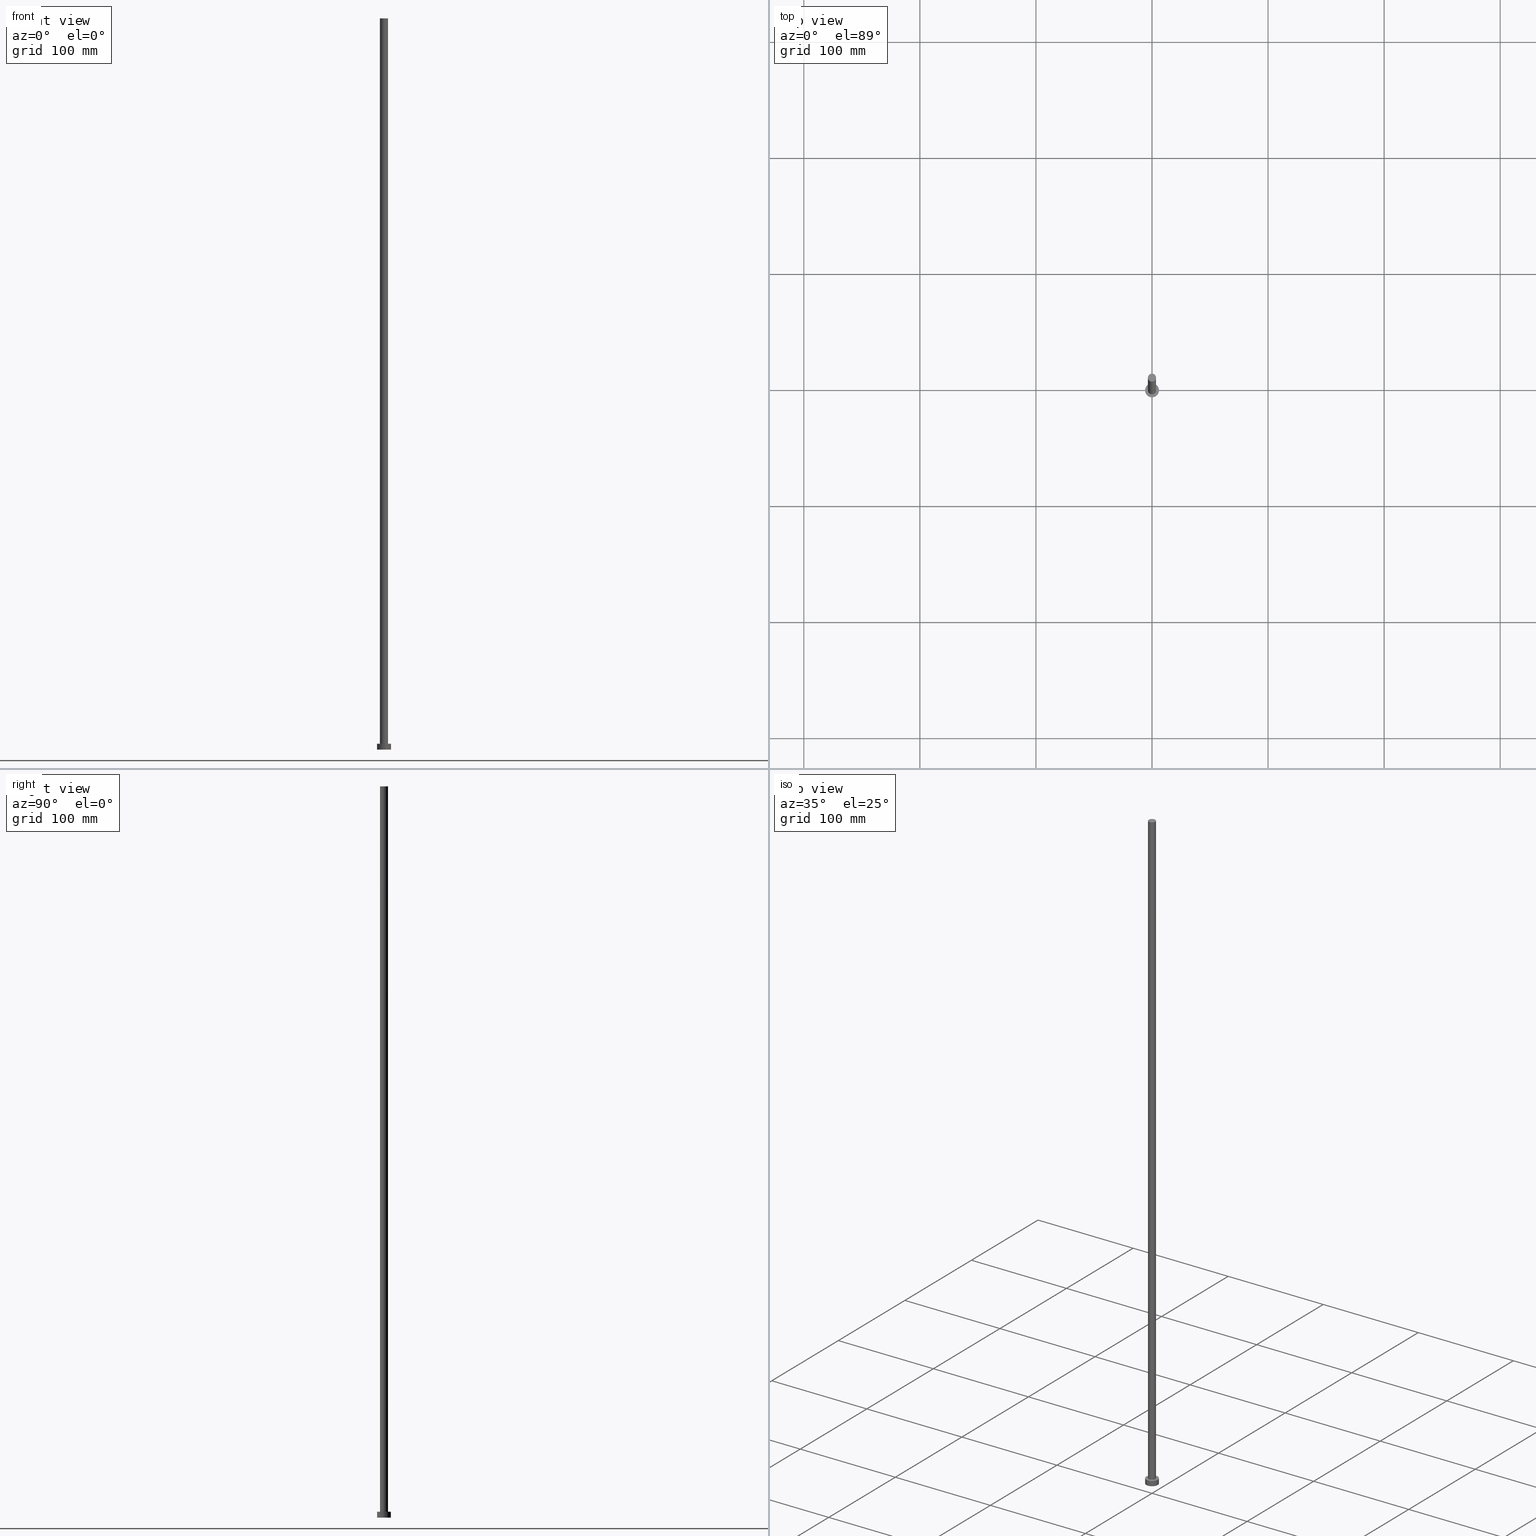
[diagram: canonical four-view strip — front | top / right | iso, engineering-drawing reading convention]
A machine part, canonical four-view strip (front | top / right | iso — engineering-drawing reading convention). The complete STEP part file that produces these views, byte-faithful:
ISO-10303-21;
HEADER;
FILE_DESCRIPTION (( 'STEP AP203' ),
    '1' );
FILE_NAME ('64f1.STEP',
    '2023-02-12T11:58:34',
    ( '' ),
    ( '' ),
    'SwSTEP 2.0',
    'SolidWorks 2019',
    '' );
FILE_SCHEMA (( 'CONFIG_CONTROL_DESIGN' ));
ENDSEC;

DATA;
#1 = DATE_AND_TIME ( #253, #81 ) ;
#2 = LINE ( 'NONE', #80, #142 ) ;
#3 = DIRECTION ( 'NONE',  ( 0.000000000000000000, 0.000000000000000000, 1.000000000000000000 ) ) ;
#4 = DIRECTION ( 'NONE',  ( 1.000000000000000000, 0.000000000000000000, -0.000000000000000000 ) ) ;
#5 = AXIS2_PLACEMENT_3D ( 'NONE', #164, #64, #147 ) ;
#6 = CC_DESIGN_PERSON_AND_ORGANIZATION_ASSIGNMENT ( #40, #194, ( #237 ) ) ;
#7 = LINE ( 'NONE', #28, #126 ) ;
#8 = DESIGN_CONTEXT ( 'detailed design', #234, 'design' ) ;
#9 = APPROVAL_ROLE ( '' ) ;
#10 = AXIS2_PLACEMENT_3D ( 'NONE', #188, #246, #224 ) ;
#11 = DIRECTION ( 'NONE',  ( 1.000000000000000000, 0.000000000000000000, 0.000000000000000000 ) ) ;
#12 = APPROVAL_DATE_TIME ( #56, #181 ) ;
#13 = DIRECTION ( 'NONE',  ( 0.000000000000000000, 0.000000000000000000, 1.000000000000000000 ) ) ;
#14 = CALENDAR_DATE ( 2023, 12, 2 ) ;
#15 = ORIENTED_EDGE ( 'NONE', *, *, #209, .T. ) ;
#16 = AXIS2_PLACEMENT_3D ( 'NONE', #171, #73, #151 ) ;
#17 = AXIS2_PLACEMENT_3D ( 'NONE', #180, #145, #179 ) ;
#18 = APPROVAL_DATE_TIME ( #255, #107 ) ;
#19 = ORIENTED_EDGE ( 'NONE', *, *, #211, .T. ) ;
#20 = CARTESIAN_POINT ( 'NONE',  ( 0.000000000000000000, 0.000000000000000000, 5.000000000000000000 ) ) ;
#21 = COORDINATED_UNIVERSAL_TIME_OFFSET ( 1, 0, .AHEAD. ) ;
#22 = CARTESIAN_POINT ( 'NONE',  ( -6.000000000000000888, 0.000000000000000000, 0.000000000000000000 ) ) ;
#23 = PERSON_AND_ORGANIZATION_ROLE ( 'design_supplier' ) ;
#24 = CARTESIAN_POINT ( 'NONE',  ( 3.500000000000000000, 4.286263797015736595E-16, 630.0000000000000000 ) ) ;
#25 = CIRCLE ( 'NONE', #215, 3.500000000000000000 ) ;
#26 = DIRECTION ( 'NONE',  ( -1.000000000000000000, 0.000000000000000000, 0.000000000000000000 ) ) ;
#27 = SHAPE_DEFINITION_REPRESENTATION ( #61, #190 ) ;
#28 = CARTESIAN_POINT ( 'NONE',  ( -3.500000000000000000, 0.000000000000000000, 630.0000000000000000 ) ) ;
#29 = CARTESIAN_POINT ( 'NONE',  ( 3.500000000000000000, 4.286263797015736595E-16, 630.0000000000000000 ) ) ;
#30 = LOCAL_TIME ( 12, 58, 34.00000000000000000, #137 ) ;
#31 = APPLICATION_PROTOCOL_DEFINITION ( 'international standard', 'config_control_design', 1994, #234 ) ;
#32 =( NAMED_UNIT ( * ) PLANE_ANGLE_UNIT ( ) SI_UNIT ( $, .RADIAN. ) );
#33 = PERSON_AND_ORGANIZATION ( #86, #49 ) ;
#34 = EDGE_CURVE ( 'NONE', #76, #150, #25, .T. ) ;
#35 =( GEOMETRIC_REPRESENTATION_CONTEXT ( 3 ) GLOBAL_UNCERTAINTY_ASSIGNED_CONTEXT ( ( #173 ) ) GLOBAL_UNIT_ASSIGNED_CONTEXT ( ( #53, #32, #228 ) ) REPRESENTATION_CONTEXT ( 'NONE', 'WORKASPACE' ) );
#36 = ORIENTED_EDGE ( 'NONE', *, *, #128, .T. ) ;
#37 = ORIENTED_EDGE ( 'NONE', *, *, #41, .F. ) ;
#38 = ORIENTED_EDGE ( 'NONE', *, *, #67, .F. ) ;
#39 = APPROVAL_STATUS ( 'not_yet_approved' ) ;
#40 = PERSON_AND_ORGANIZATION ( #86, #49 ) ;
#41 = EDGE_CURVE ( 'NONE', #58, #210, #47, .T. ) ;
#42 = DIRECTION ( 'NONE',  ( 1.000000000000000000, 0.000000000000000000, 0.000000000000000000 ) ) ;
#43 = AXIS2_PLACEMENT_3D ( 'NONE', #48, #127, #83 ) ;
#44 = DIRECTION ( 'NONE',  ( 0.000000000000000000, 0.000000000000000000, 1.000000000000000000 ) ) ;
#45 = CARTESIAN_POINT ( 'NONE',  ( 6.000000000000000888, 7.347880794884120722E-16, 5.000000000000000000 ) ) ;
#46 = LINE ( 'NONE', #24, #244 ) ;
#47 = CIRCLE ( 'NONE', #101, 6.000000000000000888 ) ;
#48 = CARTESIAN_POINT ( 'NONE',  ( 0.000000000000000000, 0.000000000000000000, 630.0000000000000000 ) ) ;
#49 = ORGANIZATION ( 'NEUR�EN�', 'NEUR�EN�', '' ) ;
#50 = CC_DESIGN_DATE_AND_TIME_ASSIGNMENT ( #1, #159, ( #54 ) ) ;
#51 = CC_DESIGN_APPROVAL ( #107, ( #237 ) ) ;
#52 = DATE_TIME_ROLE ( 'creation_date' ) ;
#53 =( LENGTH_UNIT ( ) NAMED_UNIT ( * ) SI_UNIT ( .MILLI., .METRE. ) );
#54 = SECURITY_CLASSIFICATION ( '', '', #118 ) ;
#55 = EDGE_CURVE ( 'NONE', #227, #150, #46, .T. ) ;
#56 = DATE_AND_TIME ( #185, #226 ) ;
#57 = ORIENTED_EDGE ( 'NONE', *, *, #203, .T. ) ;
#58 = VERTEX_POINT ( 'NONE', #45 ) ;
#59 = APPROVAL_PERSON_ORGANIZATION ( #187, #181, #9 ) ;
#60 = ADVANCED_FACE ( 'NONE', ( #146 ), #104, .T. ) ;
#61 = PRODUCT_DEFINITION_SHAPE ( 'NONE', 'NONE',  #225 ) ;
#62 = CARTESIAN_POINT ( 'NONE',  ( 0.000000000000000000, 0.000000000000000000, 5.000000000000000000 ) ) ;
#63 = DIRECTION ( 'NONE',  ( -0.000000000000000000, -0.000000000000000000, -1.000000000000000000 ) ) ;
#64 = DIRECTION ( 'NONE',  ( 0.000000000000000000, 0.000000000000000000, 1.000000000000000000 ) ) ;
#65 = DIRECTION ( 'NONE',  ( -0.000000000000000000, -0.000000000000000000, -1.000000000000000000 ) ) ;
#66 = CLOSED_SHELL ( 'NONE', ( #60, #240, #136, #223, #163, #134, #167 ) ) ;
#67 = EDGE_CURVE ( 'NONE', #174, #98, #241, .T. ) ;
#68 = FACE_OUTER_BOUND ( 'NONE', #157, .T. ) ;
#69 = FACE_OUTER_BOUND ( 'NONE', #195, .T. ) ;
#70 = CC_DESIGN_DATE_AND_TIME_ASSIGNMENT ( #247, #52, ( #225 ) ) ;
#71 = DIRECTION ( 'NONE',  ( 0.000000000000000000, 0.000000000000000000, 1.000000000000000000 ) ) ;
#72 = ORIENTED_EDGE ( 'NONE', *, *, #209, .F. ) ;
#73 = DIRECTION ( 'NONE',  ( -0.000000000000000000, -0.000000000000000000, -1.000000000000000000 ) ) ;
#74 = APPROVAL ( #39, 'NEUR�EN�' ) ;
#75 = ORIENTED_EDGE ( 'NONE', *, *, #55, .T. ) ;
#76 = VERTEX_POINT ( 'NONE', #120 ) ;
#77 = PERSON_AND_ORGANIZATION ( #86, #49 ) ;
#78 = COORDINATED_UNIVERSAL_TIME_OFFSET ( 1, 0, .AHEAD. ) ;
#79 = AXIS2_PLACEMENT_3D ( 'NONE', #125, #178, #121 ) ;
#80 = CARTESIAN_POINT ( 'NONE',  ( -6.000000000000000888, 0.000000000000000000, 5.000000000000000000 ) ) ;
#81 = LOCAL_TIME ( 12, 58, 34.00000000000000000, #21 ) ;
#82 = CARTESIAN_POINT ( 'NONE',  ( 6.000000000000000888, 7.347880794884120722E-16, 0.000000000000000000 ) ) ;
#83 = DIRECTION ( 'NONE',  ( 1.000000000000000000, 0.000000000000000000, 0.000000000000000000 ) ) ;
#84 = APPROVAL_DATE_TIME ( #230, #74 ) ;
#85 = FACE_OUTER_BOUND ( 'NONE', #140, .T. ) ;
#86 = PERSON ( 'NEUR�EN�', 'NEUR�EN�', 'NEUR�EN�', ('NEUR�EN�'), ('NEUR�EN�'), ('NEUR�EN�') ) ;
#87 = CARTESIAN_POINT ( 'NONE',  ( 6.000000000000000888, 7.347880794884120722E-16, 5.000000000000000000 ) ) ;
#88 = PERSON_AND_ORGANIZATION ( #86, #49 ) ;
#89 = EDGE_CURVE ( 'NONE', #210, #58, #200, .T. ) ;
#90 = CALENDAR_DATE ( 2023, 12, 2 ) ;
#91 = APPROVAL_PERSON_ORGANIZATION ( #33, #107, #113 ) ;
#92 = DIRECTION ( 'NONE',  ( 1.000000000000000000, 0.000000000000000000, 0.000000000000000000 ) ) ;
#93 = FACE_BOUND ( 'NONE', #100, .T. ) ;
#94 = CC_DESIGN_PERSON_AND_ORGANIZATION_ASSIGNMENT ( #102, #141, ( #54 ) ) ;
#95 = ORIENTED_EDGE ( 'NONE', *, *, #55, .F. ) ;
#96 = ORIENTED_EDGE ( 'NONE', *, *, #220, .F. ) ;
#97 = APPROVAL_PERSON_ORGANIZATION ( #238, #74, #177 ) ;
#98 = VERTEX_POINT ( 'NONE', #22 ) ;
#99 = EDGE_CURVE ( 'NONE', #210, #98, #2, .T. ) ;
#100 = EDGE_LOOP ( 'NONE', ( #193, #96 ) ) ;
#101 = AXIS2_PLACEMENT_3D ( 'NONE', #62, #217, #216 ) ;
#102 = PERSON_AND_ORGANIZATION ( #86, #49 ) ;
#103 = CARTESIAN_POINT ( 'NONE',  ( 0.000000000000000000, 0.000000000000000000, 5.000000000000000000 ) ) ;
#104 = CYLINDRICAL_SURFACE ( 'NONE', #79, 3.500000000000000000 ) ;
#105 = PLANE ( 'NONE',  #17 ) ;
#106 = PLANE ( 'NONE',  #162 ) ;
#107 = APPROVAL ( #132, 'NEUR�EN�' ) ;
#108 = FACE_OUTER_BOUND ( 'NONE', #138, .T. ) ;
#109 = AXIS2_PLACEMENT_3D ( 'NONE', #197, #3, #160 ) ;
#110 = APPLICATION_PROTOCOL_DEFINITION ( 'international standard', 'config_control_design', 1994, #175 ) ;
#111 = VECTOR ( 'NONE', #248, 1000.000000000000000 ) ;
#112 = COORDINATED_UNIVERSAL_TIME_OFFSET ( 1, 0, .AHEAD. ) ;
#113 = APPROVAL_ROLE ( '' ) ;
#114 = PERSON_AND_ORGANIZATION_ROLE ( 'design_owner' ) ;
#115 = ORIENTED_EDGE ( 'NONE', *, *, #143, .T. ) ;
#116 = LOCAL_TIME ( 12, 58, 34.00000000000000000, #78 ) ;
#117 = CIRCLE ( 'NONE', #5, 3.500000000000000000 ) ;
#118 = SECURITY_CLASSIFICATION_LEVEL ( 'unclassified' ) ;
#119 = EDGE_LOOP ( 'NONE', ( #214, #135 ) ) ;
#120 = CARTESIAN_POINT ( 'NONE',  ( -3.500000000000000000, 0.000000000000000000, 5.000000000000000000 ) ) ;
#121 = DIRECTION ( 'NONE',  ( -1.000000000000000000, 0.000000000000000000, 0.000000000000000000 ) ) ;
#122 = LOCAL_TIME ( 12, 58, 34.00000000000000000, #170 ) ;
#123 = DIRECTION ( 'NONE',  ( 1.000000000000000000, 0.000000000000000000, 0.000000000000000000 ) ) ;
#124 = CC_DESIGN_PERSON_AND_ORGANIZATION_ASSIGNMENT ( #207, #114, ( #202 ) ) ;
#125 = CARTESIAN_POINT ( 'NONE',  ( 0.000000000000000000, 0.000000000000000000, 630.0000000000000000 ) ) ;
#126 = VECTOR ( 'NONE', #63, 1000.000000000000000 ) ;
#127 = DIRECTION ( 'NONE',  ( 0.000000000000000000, 0.000000000000000000, 1.000000000000000000 ) ) ;
#128 = EDGE_CURVE ( 'NONE', #155, #76, #7, .T. ) ;
#129 = DIRECTION ( 'NONE',  ( 1.000000000000000000, 0.000000000000000000, 0.000000000000000000 ) ) ;
#130 = AXIS2_PLACEMENT_3D ( 'NONE', #103, #65, #26 ) ;
#131 = CARTESIAN_POINT ( 'NONE',  ( 0.000000000000000000, 0.000000000000000000, 5.000000000000000000 ) ) ;
#132 = APPROVAL_STATUS ( 'not_yet_approved' ) ;
#133 = CYLINDRICAL_SURFACE ( 'NONE', #16, 6.000000000000000888 ) ;
#134 = ADVANCED_FACE ( 'NONE', ( #85 ), #166, .T. ) ;
#135 = ORIENTED_EDGE ( 'NONE', *, *, #41, .T. ) ;
#136 = ADVANCED_FACE ( 'NONE', ( #68 ), #201, .T. ) ;
#137 = COORDINATED_UNIVERSAL_TIME_OFFSET ( 1, 0, .AHEAD. ) ;
#138 = EDGE_LOOP ( 'NONE', ( #191, #38 ) ) ;
#139 = CARTESIAN_POINT ( 'NONE',  ( 0.000000000000000000, 0.000000000000000000, 5.000000000000000000 ) ) ;
#140 = EDGE_LOOP ( 'NONE', ( #95, #221, #36, #189 ) ) ;
#141 = PERSON_AND_ORGANIZATION_ROLE ( 'classification_officer' ) ;
#142 = VECTOR ( 'NONE', #199, 1000.000000000000000 ) ;
#143 = EDGE_CURVE ( 'NONE', #98, #174, #204, .T. ) ;
#144 = CIRCLE ( 'NONE', #154, 3.500000000000000000 ) ;
#145 = DIRECTION ( 'NONE',  ( 0.000000000000000000, 0.000000000000000000, 1.000000000000000000 ) ) ;
#146 = FACE_OUTER_BOUND ( 'NONE', #254, .T. ) ;
#147 = DIRECTION ( 'NONE',  ( 1.000000000000000000, 0.000000000000000000, 0.000000000000000000 ) ) ;
#148 = CARTESIAN_POINT ( 'NONE',  ( 0.000000000000000000, 0.000000000000000000, 630.0000000000000000 ) ) ;
#149 = CARTESIAN_POINT ( 'NONE',  ( 0.000000000000000000, 0.000000000000000000, 0.000000000000000000 ) ) ;
#150 = VERTEX_POINT ( 'NONE', #158 ) ;
#151 = DIRECTION ( 'NONE',  ( -1.000000000000000000, 0.000000000000000000, 0.000000000000000000 ) ) ;
#152 = CIRCLE ( 'NONE', #43, 3.500000000000000000 ) ;
#153 = ORIENTED_EDGE ( 'NONE', *, *, #99, .F. ) ;
#154 = AXIS2_PLACEMENT_3D ( 'NONE', #131, #71, #92 ) ;
#155 = VERTEX_POINT ( 'NONE', #236 ) ;
#156 = CALENDAR_DATE ( 2023, 12, 2 ) ;
#157 = EDGE_LOOP ( 'NONE', ( #233, #184, #232, #115 ) ) ;
#158 = CARTESIAN_POINT ( 'NONE',  ( 3.500000000000000000, 4.286263797015736595E-16, 5.000000000000000000 ) ) ;
#159 = DATE_TIME_ROLE ( 'classification_date' ) ;
#160 = DIRECTION ( 'NONE',  ( 1.000000000000000000, 0.000000000000000000, 0.000000000000000000 ) ) ;
#161 = AXIS2_PLACEMENT_3D ( 'NONE', #182, #13, #11 ) ;
#162 = AXIS2_PLACEMENT_3D ( 'NONE', #148, #218, #4 ) ;
#163 = ADVANCED_FACE ( 'NONE', ( #108 ), #105, .F. ) ;
#164 = CARTESIAN_POINT ( 'NONE',  ( 0.000000000000000000, 0.000000000000000000, 630.0000000000000000 ) ) ;
#165 = CARTESIAN_POINT ( 'NONE',  ( 0.000000000000000000, 0.000000000000000000, 630.0000000000000000 ) ) ;
#166 = CYLINDRICAL_SURFACE ( 'NONE', #172, 3.500000000000000000 ) ;
#167 = ADVANCED_FACE ( 'NONE', ( #239 ), #106, .T. ) ;
#168 = AXIS2_PLACEMENT_3D ( 'NONE', #149, #44, #123 ) ;
#169 = CARTESIAN_POINT ( 'NONE',  ( -6.000000000000000888, 0.000000000000000000, 5.000000000000000000 ) ) ;
#170 = COORDINATED_UNIVERSAL_TIME_OFFSET ( 1, 0, .AHEAD. ) ;
#171 = CARTESIAN_POINT ( 'NONE',  ( 0.000000000000000000, 0.000000000000000000, 5.000000000000000000 ) ) ;
#172 = AXIS2_PLACEMENT_3D ( 'NONE', #165, #243, #219 ) ;
#173 = UNCERTAINTY_MEASURE_WITH_UNIT (LENGTH_MEASURE( 1.000000000000000082E-05 ), #53, 'distance_accuracy_value', 'NONE');
#174 = VERTEX_POINT ( 'NONE', #82 ) ;
#175 = APPLICATION_CONTEXT ( 'configuration controlled 3d designs of mechanical parts and assemblies' ) ;
#176 = DIRECTION ( 'NONE',  ( 0.000000000000000000, 0.000000000000000000, 1.000000000000000000 ) ) ;
#177 = APPROVAL_ROLE ( '' ) ;
#178 = DIRECTION ( 'NONE',  ( -0.000000000000000000, -0.000000000000000000, -1.000000000000000000 ) ) ;
#179 = DIRECTION ( 'NONE',  ( 1.000000000000000000, 0.000000000000000000, -0.000000000000000000 ) ) ;
#180 = CARTESIAN_POINT ( 'NONE',  ( 0.000000000000000000, 0.000000000000000000, 0.000000000000000000 ) ) ;
#181 = APPROVAL ( #249, 'NEUR�EN�' ) ;
#182 = CARTESIAN_POINT ( 'NONE',  ( 0.000000000000000000, 0.000000000000000000, 0.000000000000000000 ) ) ;
#183 = CC_DESIGN_SECURITY_CLASSIFICATION ( #54, ( #237 ) ) ;
#184 = ORIENTED_EDGE ( 'NONE', *, *, #89, .F. ) ;
#185 = CALENDAR_DATE ( 2023, 12, 2 ) ;
#186 = MECHANICAL_CONTEXT ( 'NONE', #175, 'mechanical' ) ;
#187 = PERSON_AND_ORGANIZATION ( #86, #49 ) ;
#188 = CARTESIAN_POINT ( 'NONE',  ( 0.000000000000000000, 0.000000000000000000, 5.000000000000000000 ) ) ;
#189 = ORIENTED_EDGE ( 'NONE', *, *, #34, .T. ) ;
#190 = ADVANCED_BREP_SHAPE_REPRESENTATION ( '64f1', ( #242, #161 ), #35 ) ;
#191 = ORIENTED_EDGE ( 'NONE', *, *, #143, .F. ) ;
#192 = CC_DESIGN_APPROVAL ( #181, ( #225 ) ) ;
#193 = ORIENTED_EDGE ( 'NONE', *, *, #34, .F. ) ;
#194 = PERSON_AND_ORGANIZATION_ROLE ( 'creator' ) ;
#195 = EDGE_LOOP ( 'NONE', ( #37, #19, #252, #153 ) ) ;
#196 = CC_DESIGN_PERSON_AND_ORGANIZATION_ASSIGNMENT ( #88, #245, ( #225 ) ) ;
#197 = CARTESIAN_POINT ( 'NONE',  ( 0.000000000000000000, 0.000000000000000000, 0.000000000000000000 ) ) ;
#198 = DIRECTION ( 'NONE',  ( -0.000000000000000000, -0.000000000000000000, -1.000000000000000000 ) ) ;
#199 = DIRECTION ( 'NONE',  ( -0.000000000000000000, -0.000000000000000000, -1.000000000000000000 ) ) ;
#200 = CIRCLE ( 'NONE', #229, 6.000000000000000888 ) ;
#201 = CYLINDRICAL_SURFACE ( 'NONE', #130, 6.000000000000000888 ) ;
#202 = PRODUCT ( '64f1', '64f1', '', ( #186 ) ) ;
#203 = EDGE_CURVE ( 'NONE', #155, #227, #117, .T. ) ;
#204 = CIRCLE ( 'NONE', #168, 6.000000000000000888 ) ;
#205 = PLANE ( 'NONE',  #10 ) ;
#206 = ORIENTED_EDGE ( 'NONE', *, *, #220, .T. ) ;
#207 = PERSON_AND_ORGANIZATION ( #86, #49 ) ;
#208 = FACE_OUTER_BOUND ( 'NONE', #119, .T. ) ;
#209 = EDGE_CURVE ( 'NONE', #227, #155, #152, .T. ) ;
#210 = VERTEX_POINT ( 'NONE', #169 ) ;
#211 = EDGE_CURVE ( 'NONE', #58, #174, #222, .T. ) ;
#212 = ORIENTED_EDGE ( 'NONE', *, *, #128, .F. ) ;
#213 = DIRECTION ( 'NONE',  ( 0.000000000000000000, 0.000000000000000000, 1.000000000000000000 ) ) ;
#214 = ORIENTED_EDGE ( 'NONE', *, *, #89, .T. ) ;
#215 = AXIS2_PLACEMENT_3D ( 'NONE', #139, #213, #42 ) ;
#216 = DIRECTION ( 'NONE',  ( 1.000000000000000000, 0.000000000000000000, 0.000000000000000000 ) ) ;
#217 = DIRECTION ( 'NONE',  ( 0.000000000000000000, 0.000000000000000000, 1.000000000000000000 ) ) ;
#218 = DIRECTION ( 'NONE',  ( 0.000000000000000000, 0.000000000000000000, 1.000000000000000000 ) ) ;
#219 = DIRECTION ( 'NONE',  ( -1.000000000000000000, 0.000000000000000000, 0.000000000000000000 ) ) ;
#220 = EDGE_CURVE ( 'NONE', #150, #76, #144, .T. ) ;
#221 = ORIENTED_EDGE ( 'NONE', *, *, #203, .F. ) ;
#222 = LINE ( 'NONE', #87, #111 ) ;
#223 = ADVANCED_FACE ( 'NONE', ( #93, #208 ), #205, .T. ) ;
#224 = DIRECTION ( 'NONE',  ( 1.000000000000000000, 0.000000000000000000, -0.000000000000000000 ) ) ;
#225 = PRODUCT_DEFINITION ( 'NEZN�M�', '', #237, #8 ) ;
#226 = LOCAL_TIME ( 12, 58, 34.00000000000000000, #112 ) ;
#227 = VERTEX_POINT ( 'NONE', #29 ) ;
#228 =( NAMED_UNIT ( * ) SI_UNIT ( $, .STERADIAN. ) SOLID_ANGLE_UNIT ( ) );
#229 = AXIS2_PLACEMENT_3D ( 'NONE', #20, #176, #129 ) ;
#230 = DATE_AND_TIME ( #156, #116 ) ;
#231 = CC_DESIGN_APPROVAL ( #74, ( #54 ) ) ;
#232 = ORIENTED_EDGE ( 'NONE', *, *, #99, .T. ) ;
#233 = ORIENTED_EDGE ( 'NONE', *, *, #211, .F. ) ;
#234 = APPLICATION_CONTEXT ( 'configuration controlled 3d designs of mechanical parts and assemblies' ) ;
#235 = PRODUCT_RELATED_PRODUCT_CATEGORY ( 'detail', '', ( #202 ) ) ;
#236 = CARTESIAN_POINT ( 'NONE',  ( -3.500000000000000000, 0.000000000000000000, 630.0000000000000000 ) ) ;
#237 = PRODUCT_DEFINITION_FORMATION_WITH_SPECIFIED_SOURCE ( 'LIBOVOLN�', '', #202, .NOT_KNOWN. ) ;
#238 = PERSON_AND_ORGANIZATION ( #86, #49 ) ;
#239 = FACE_OUTER_BOUND ( 'NONE', #251, .T. ) ;
#240 = ADVANCED_FACE ( 'NONE', ( #69 ), #133, .T. ) ;
#241 = CIRCLE ( 'NONE', #109, 6.000000000000000888 ) ;
#242 = MANIFOLD_SOLID_BREP ( 'P�idat vysunut�m3', #66 ) ;
#243 = DIRECTION ( 'NONE',  ( -0.000000000000000000, -0.000000000000000000, -1.000000000000000000 ) ) ;
#244 = VECTOR ( 'NONE', #198, 1000.000000000000000 ) ;
#245 = PERSON_AND_ORGANIZATION_ROLE ( 'creator' ) ;
#246 = DIRECTION ( 'NONE',  ( 0.000000000000000000, 0.000000000000000000, 1.000000000000000000 ) ) ;
#247 = DATE_AND_TIME ( #90, #122 ) ;
#248 = DIRECTION ( 'NONE',  ( -0.000000000000000000, -0.000000000000000000, -1.000000000000000000 ) ) ;
#249 = APPROVAL_STATUS ( 'not_yet_approved' ) ;
#250 = CC_DESIGN_PERSON_AND_ORGANIZATION_ASSIGNMENT ( #77, #23, ( #237 ) ) ;
#251 = EDGE_LOOP ( 'NONE', ( #57, #15 ) ) ;
#252 = ORIENTED_EDGE ( 'NONE', *, *, #67, .T. ) ;
#253 = CALENDAR_DATE ( 2023, 12, 2 ) ;
#254 = EDGE_LOOP ( 'NONE', ( #72, #75, #206, #212 ) ) ;
#255 = DATE_AND_TIME ( #14, #30 ) ;
ENDSEC;
END-ISO-10303-21;
